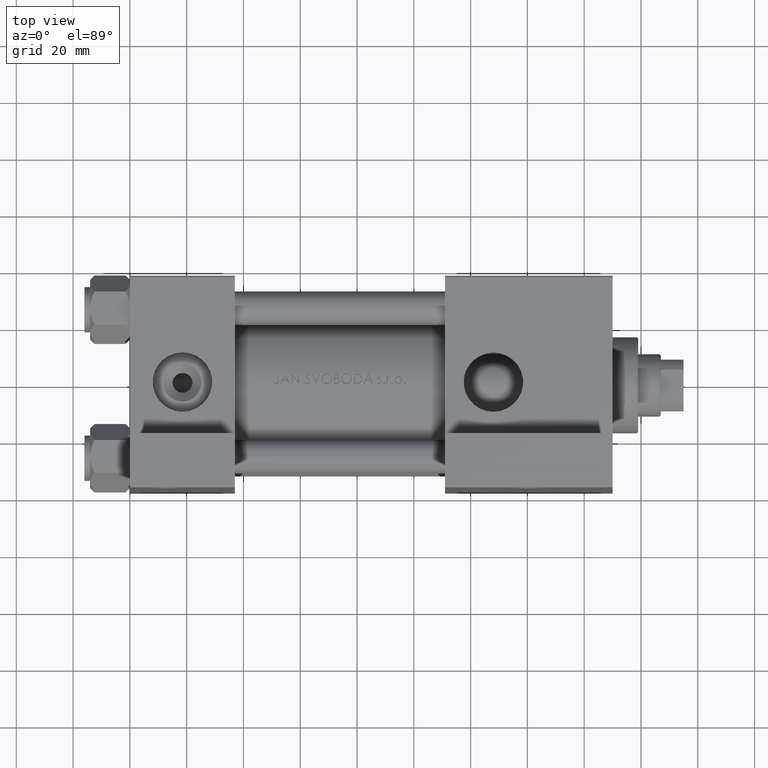
[diagram: clean part render]
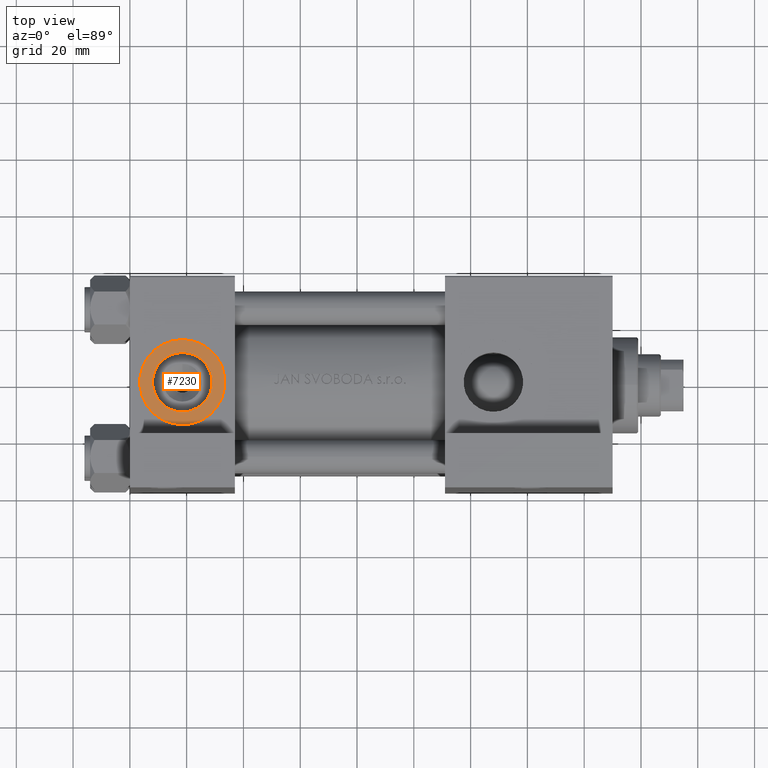
[diagram: same view with one face highlighted and labeled with its STEP entity id]
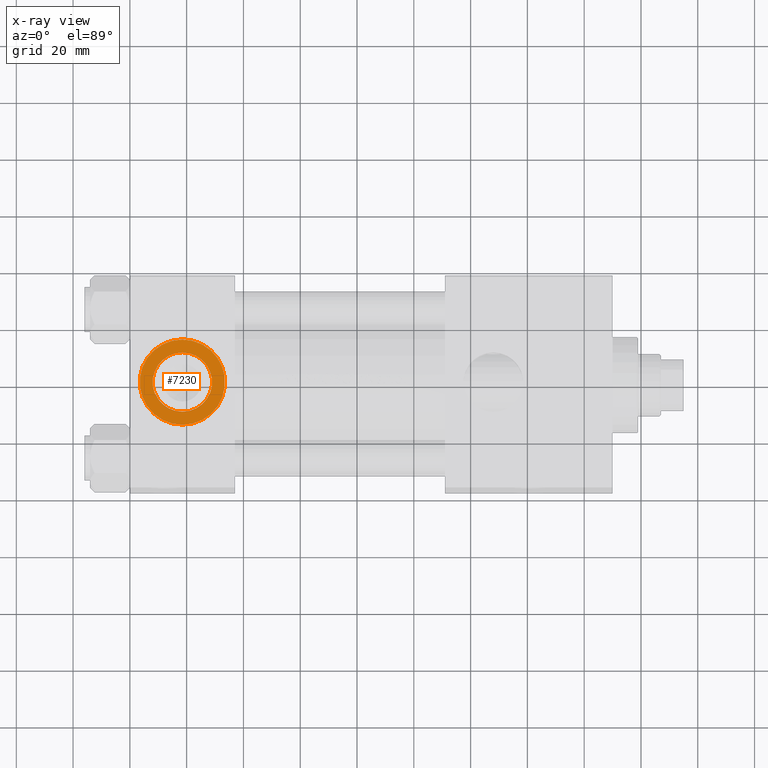
[diagram: x-ray of the same camera — body ghosted, the highlighted face saturated]
A machine part, top view. The second image highlights one B-rep face of the part: STEP entity #7230.
The next image is the same camera in x-ray: the body ghosted, the highlighted face saturated — about 0% of this face is hidden behind the body in this view.
In plain terms, the highlighted planar face has unit normal (0, -0, 1).
Its self-contained STEP definition (entity closure, byte-faithful):
#93 = DIRECTION ( 'NONE',  ( 0.000000000000000000, -1.000000000000000000, -8.673617379884036705E-17 ) ) ;
#888 = DIRECTION ( 'NONE',  ( 0.000000000000000000, 0.000000000000000000, -1.000000000000000000 ) ) ;
#2185 = CARTESIAN_POINT ( 'NONE',  ( 18.50000000000000355, -37.30000000000000426, 14.99999999999999822 ) ) ;
#2667 = EDGE_LOOP ( 'NONE', ( #33539, #33039 ) ) ;
#5862 = EDGE_LOOP ( 'NONE', ( #21269, #31044 ) ) ;
#5943 = AXIS2_PLACEMENT_3D ( 'NONE', #15474, #11498, #26699 ) ;
#6047 = VERTEX_POINT ( 'NONE', #2185 ) ;
#7230 = ADVANCED_FACE ( 'NONE', ( #23047, #38996 ), #8362, .T. ) ;
#8059 = DIRECTION ( 'NONE',  ( 0.000000000000000000, 0.000000000000000000, -1.000000000000000000 ) ) ;
#8362 = PLANE ( 'NONE',  #29606 ) ;
#9028 = AXIS2_PLACEMENT_3D ( 'NONE', #44817, #38091, #45073 ) ;
#9085 = CARTESIAN_POINT ( 'NONE',  ( 18.50000000000000000, -37.30000000000000426, -3.452099717193846907E-15 ) ) ;
#11273 = EDGE_CURVE ( 'NONE', #44077, #38262, #18565, .T. ) ;
#11498 = DIRECTION ( 'NONE',  ( 0.000000000000000000, -1.000000000000000000, -8.673617379884036705E-17 ) ) ;
#15474 = CARTESIAN_POINT ( 'NONE',  ( 18.50000000000000000, -37.30000000000000426, -3.452099717193846907E-15 ) ) ;
#16319 = DIRECTION ( 'NONE',  ( 0.000000000000000000, 8.673617379884036705E-17, -1.000000000000000000 ) ) ;
#18016 = EDGE_CURVE ( 'NONE', #38262, #44077, #45705, .T. ) ;
#18565 = CIRCLE ( 'NONE', #9028, 10.48000000000000043 ) ;
#18639 = AXIS2_PLACEMENT_3D ( 'NONE', #23505, #93, #8059 ) ;
#21269 = ORIENTED_EDGE ( 'NONE', *, *, #30623, .T. ) ;
#23047 = FACE_BOUND ( 'NONE', #2667, .T. ) ;
#23505 = CARTESIAN_POINT ( 'NONE',  ( 18.50000000000000000, -37.30000000000000426, -3.452099717193846907E-15 ) ) ;
#23551 = DIRECTION ( 'NONE',  ( 0.000000000000000000, -1.000000000000000000, -8.673617379884036705E-17 ) ) ;
#24689 = CARTESIAN_POINT ( 'NONE',  ( 18.50000000000000000, -37.30000000000000426, -15.00000000000000533 ) ) ;
#25831 = VERTEX_POINT ( 'NONE', #24689 ) ;
#26699 = DIRECTION ( 'NONE',  ( 0.000000000000000000, 0.000000000000000000, -1.000000000000000000 ) ) ;
#29606 = AXIS2_PLACEMENT_3D ( 'NONE', #46962, #23551, #16319 ) ;
#30623 = EDGE_CURVE ( 'NONE', #25831, #6047, #42125, .T. ) ;
#31044 = ORIENTED_EDGE ( 'NONE', *, *, #35550, .T. ) ;
#33039 = ORIENTED_EDGE ( 'NONE', *, *, #11273, .F. ) ;
#33539 = ORIENTED_EDGE ( 'NONE', *, *, #18016, .F. ) ;
#35398 = CIRCLE ( 'NONE', #5943, 15.00000000000000178 ) ;
#35550 = EDGE_CURVE ( 'NONE', #6047, #25831, #35398, .T. ) ;
#37370 = AXIS2_PLACEMENT_3D ( 'NONE', #9085, #39483, #888 ) ;
#38091 = DIRECTION ( 'NONE',  ( 0.000000000000000000, -1.000000000000000000, -8.673617379884036705E-17 ) ) ;
#38262 = VERTEX_POINT ( 'NONE', #43327 ) ;
#38996 = FACE_OUTER_BOUND ( 'NONE', #5862, .T. ) ;
#39483 = DIRECTION ( 'NONE',  ( 0.000000000000000000, -1.000000000000000000, -8.673617379884036705E-17 ) ) ;
#42125 = CIRCLE ( 'NONE', #37370, 15.00000000000000178 ) ;
#43327 = CARTESIAN_POINT ( 'NONE',  ( 18.50000000000000000, -37.30000000000000426, -10.48000000000000398 ) ) ;
#44077 = VERTEX_POINT ( 'NONE', #45909 ) ;
#44817 = CARTESIAN_POINT ( 'NONE',  ( 18.50000000000000000, -37.30000000000000426, -3.452099717193846907E-15 ) ) ;
#45073 = DIRECTION ( 'NONE',  ( 0.000000000000000000, 0.000000000000000000, -1.000000000000000000 ) ) ;
#45705 = CIRCLE ( 'NONE', #18639, 10.48000000000000043 ) ;
#45909 = CARTESIAN_POINT ( 'NONE',  ( 18.50000000000000000, -37.30000000000000426, 10.47999999999999687 ) ) ;
#46962 = CARTESIAN_POINT ( 'NONE',  ( 18.50000000000000000, -37.30000000000000426, -3.452099717193846907E-15 ) ) ;